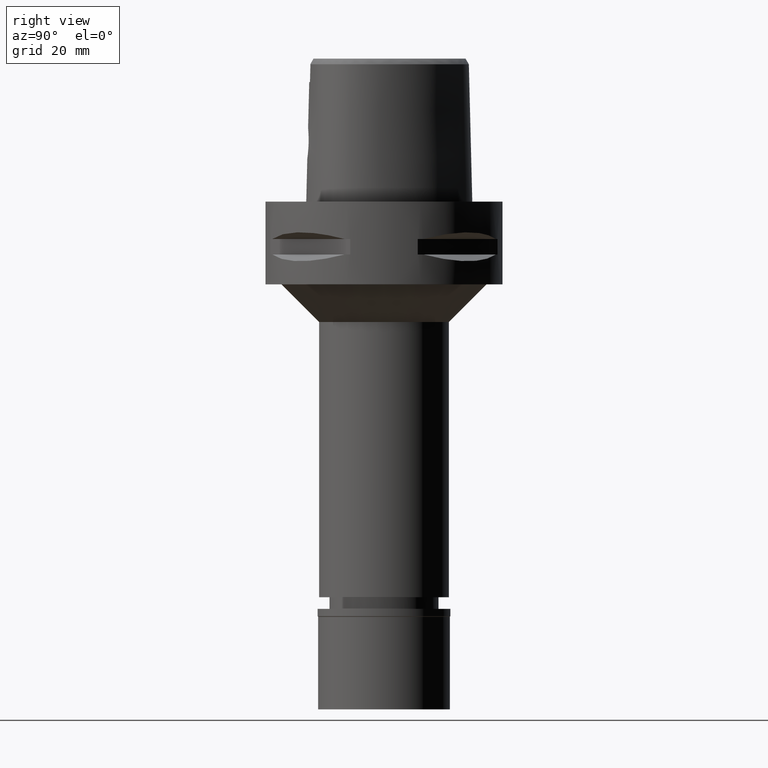
[diagram: clean part render]
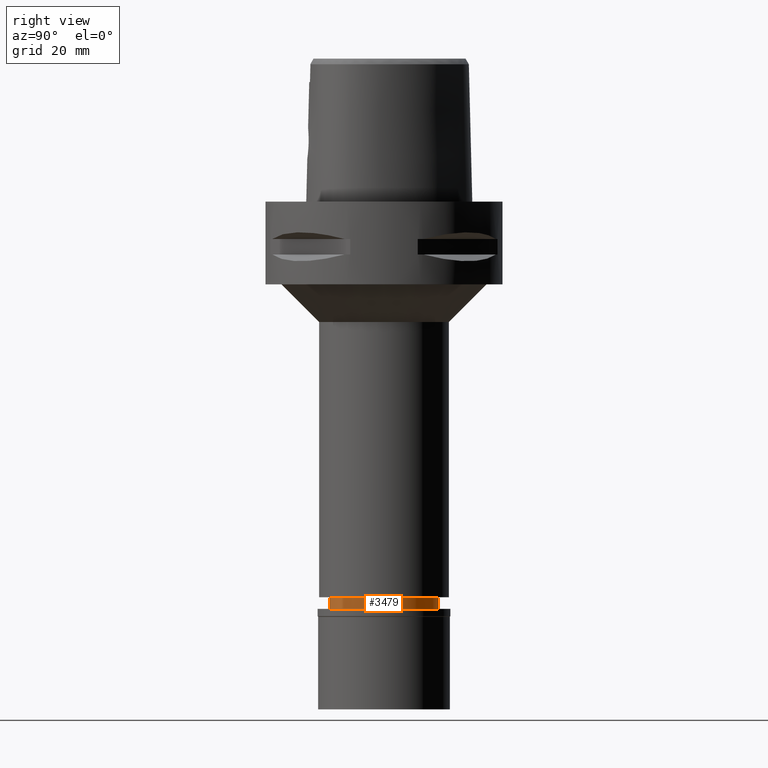
[diagram: same view with one face highlighted and labeled with its STEP entity id]
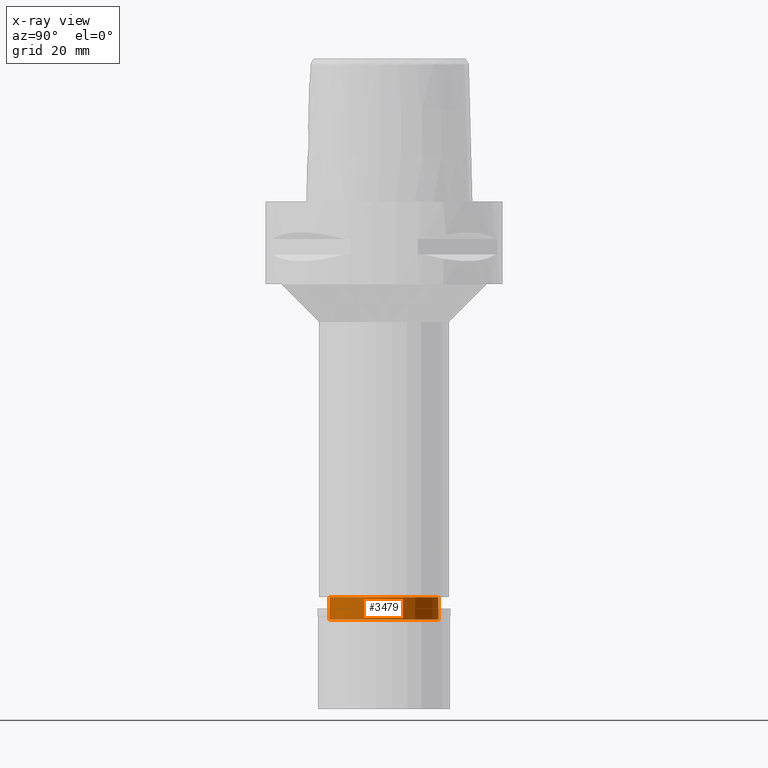
[diagram: x-ray of the same camera — body ghosted, the highlighted face saturated]
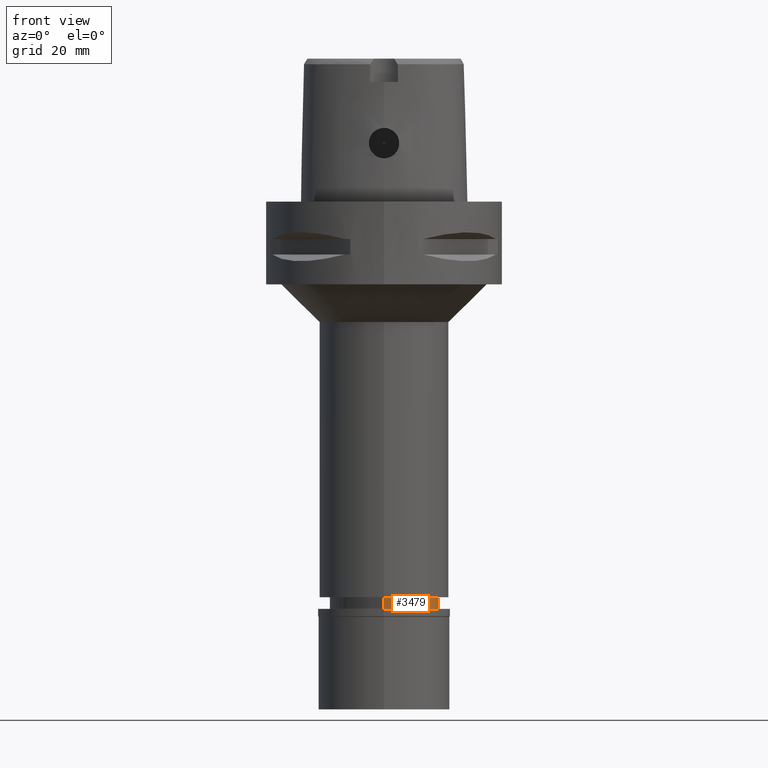
[diagram: same view with one face highlighted and labeled with its STEP entity id]
A machine part, right view. The second image highlights one B-rep face of the part: STEP entity #3479.
The next image is the same camera in x-ray: the body ghosted, the highlighted face saturated — about 0% of this face is hidden behind the body in this view.
A second angle (front view) of the same face is appended — the face is thin or edge-on in the first view.
In plain terms, the highlighted cylindrical surface (partial cylindrical patch) has radius 14.5 mm, axis along (0, 0, -1).
Its self-contained STEP definition (entity closure, byte-faithful):
#104 = CARTESIAN_POINT ( 'NONE',  ( 0.0000000000000000000, 14.50000000000000000, -105.2000000000000028 ) ) ;
#124 = ORIENTED_EDGE ( 'NONE', *, *, #653, .T. ) ;
#134 = VECTOR ( 'NONE', #2498, 1000.000000000000000 ) ;
#339 = DIRECTION ( 'NONE',  ( 0.0000000000000000000, 0.0000000000000000000, -1.000000000000000000 ) ) ;
#533 = CIRCLE ( 'NONE', #1366, 14.50000000000000000 ) ;
#537 = CARTESIAN_POINT ( 'NONE',  ( 0.0000000000000000000, 14.50000000000000000, -105.2000000000000028 ) ) ;
#614 = EDGE_CURVE ( 'NONE', #873, #710, #533, .T. ) ;
#653 = EDGE_CURVE ( 'NONE', #2457, #863, #4180, .T. ) ;
#710 = VERTEX_POINT ( 'NONE', #3808 ) ;
#847 = CARTESIAN_POINT ( 'NONE',  ( 0.0000000000000000000, -14.50000000000000000, -105.2000000000000028 ) ) ;
#863 = VERTEX_POINT ( 'NONE', #943 ) ;
#873 = VERTEX_POINT ( 'NONE', #2139 ) ;
#942 = LINE ( 'NONE', #104, #134 ) ;
#943 = CARTESIAN_POINT ( 'NONE',  ( 0.0000000000000000000, -14.50000000000000000, -105.2000000000000028 ) ) ;
#1366 = AXIS2_PLACEMENT_3D ( 'NONE', #4846, #4892, #1713 ) ;
#1435 = ORIENTED_EDGE ( 'NONE', *, *, #4969, .F. ) ;
#1618 = AXIS2_PLACEMENT_3D ( 'NONE', #4985, #339, #1929 ) ;
#1713 = DIRECTION ( 'NONE',  ( 0.0000000000000000000, -1.000000000000000000, 0.0000000000000000000 ) ) ;
#1929 = DIRECTION ( 'NONE',  ( 0.0000000000000000000, -1.000000000000000000, 0.0000000000000000000 ) ) ;
#2139 = CARTESIAN_POINT ( 'NONE',  ( 0.0000000000000000000, -14.50000000000000000, -111.1999999999999886 ) ) ;
#2334 = EDGE_CURVE ( 'NONE', #863, #873, #4322, .T. ) ;
#2457 = VERTEX_POINT ( 'NONE', #537 ) ;
#2460 = ORIENTED_EDGE ( 'NONE', *, *, #2334, .T. ) ;
#2498 = DIRECTION ( 'NONE',  ( 0.0000000000000000000, 0.0000000000000000000, -1.000000000000000000 ) ) ;
#3105 = ORIENTED_EDGE ( 'NONE', *, *, #614, .T. ) ;
#3145 = FACE_OUTER_BOUND ( 'NONE', #3530, .T. ) ;
#3479 = ADVANCED_FACE ( 'NONE', ( #3145 ), #4688, .T. ) ;
#3530 = EDGE_LOOP ( 'NONE', ( #124, #2460, #3105, #1435 ) ) ;
#3639 = CARTESIAN_POINT ( 'NONE',  ( 0.0000000000000000000, 1.300574900694000041E-14, -105.2000000000000028 ) ) ;
#3808 = CARTESIAN_POINT ( 'NONE',  ( 0.0000000000000000000, 14.50000000000000000, -111.1999999999999886 ) ) ;
#4006 = DIRECTION ( 'NONE',  ( 0.0000000000000000000, 0.0000000000000000000, -1.000000000000000000 ) ) ;
#4012 = AXIS2_PLACEMENT_3D ( 'NONE', #3639, #4799, #4415 ) ;
#4024 = VECTOR ( 'NONE', #4006, 1000.000000000000000 ) ;
#4180 = CIRCLE ( 'NONE', #4012, 14.50000000000000000 ) ;
#4322 = LINE ( 'NONE', #847, #4024 ) ;
#4415 = DIRECTION ( 'NONE',  ( 0.0000000000000000000, 1.000000000000000000, 0.0000000000000000000 ) ) ;
#4688 = CYLINDRICAL_SURFACE ( 'NONE', #1618, 14.50000000000000000 ) ;
#4799 = DIRECTION ( 'NONE',  ( 0.0000000000000000000, 0.0000000000000000000, -1.000000000000000000 ) ) ;
#4846 = CARTESIAN_POINT ( 'NONE',  ( 0.0000000000000000000, 1.300574900694000041E-14, -111.1999999999999886 ) ) ;
#4892 = DIRECTION ( 'NONE',  ( 0.0000000000000000000, 0.0000000000000000000, 1.000000000000000000 ) ) ;
#4969 = EDGE_CURVE ( 'NONE', #2457, #710, #942, .T. ) ;
#4985 = CARTESIAN_POINT ( 'NONE',  ( 0.0000000000000000000, 1.300574900694000041E-14, 6.200000000000000178 ) ) ;